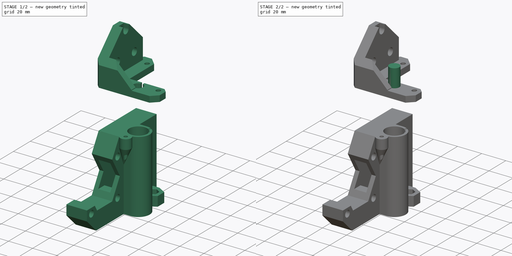
[diagram: build sequence overview — one tinted view per stage of 2, left to right]
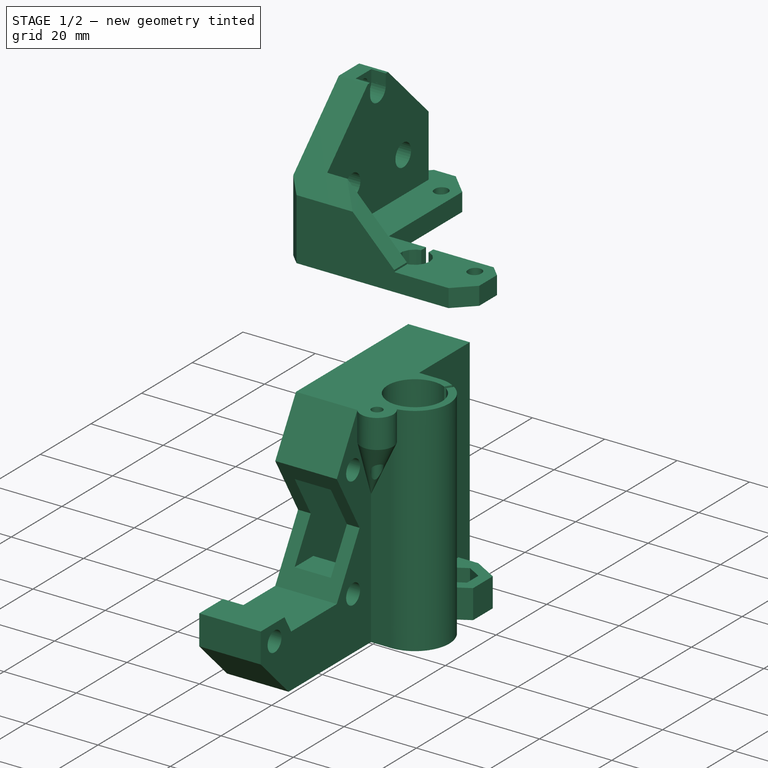
[diagram: stage 1 of 2 — iso view after this stage's code; geometry added in this stage tinted green]
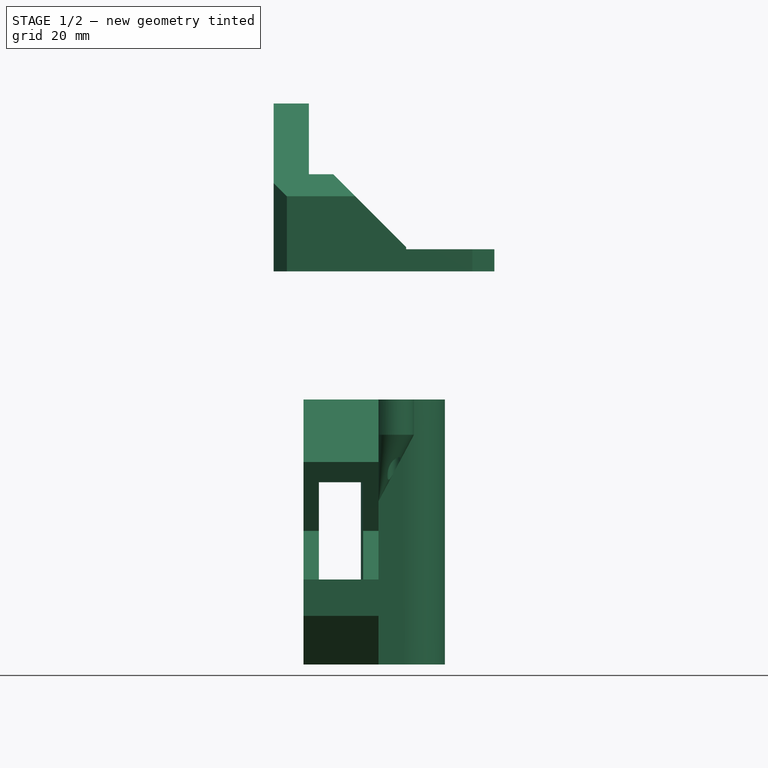
[diagram: stage 1 of 2 — front view after this stage's code; geometry added in this stage tinted green]
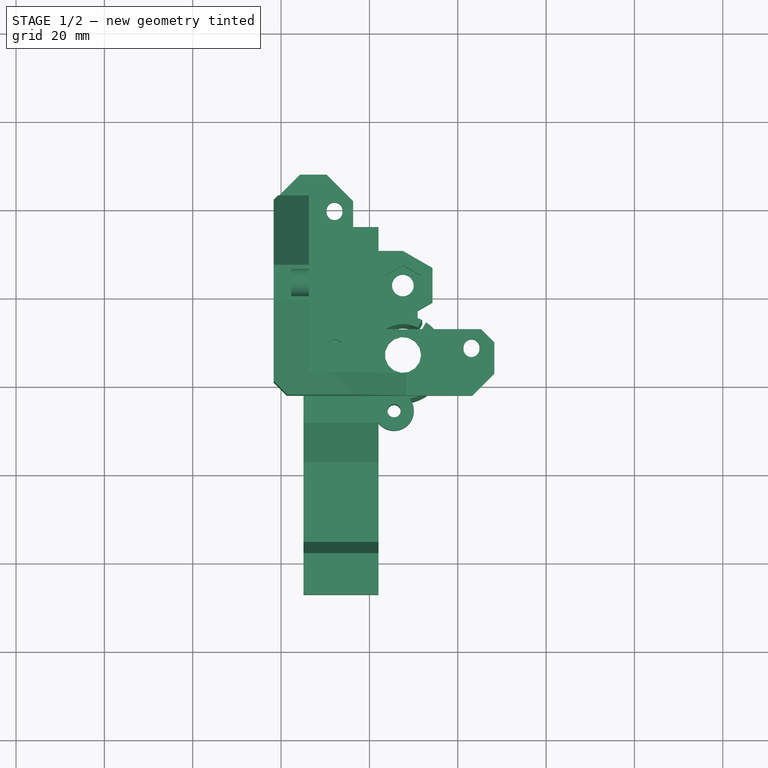
[diagram: stage 1 of 2 — top view after this stage's code; geometry added in this stage tinted green]
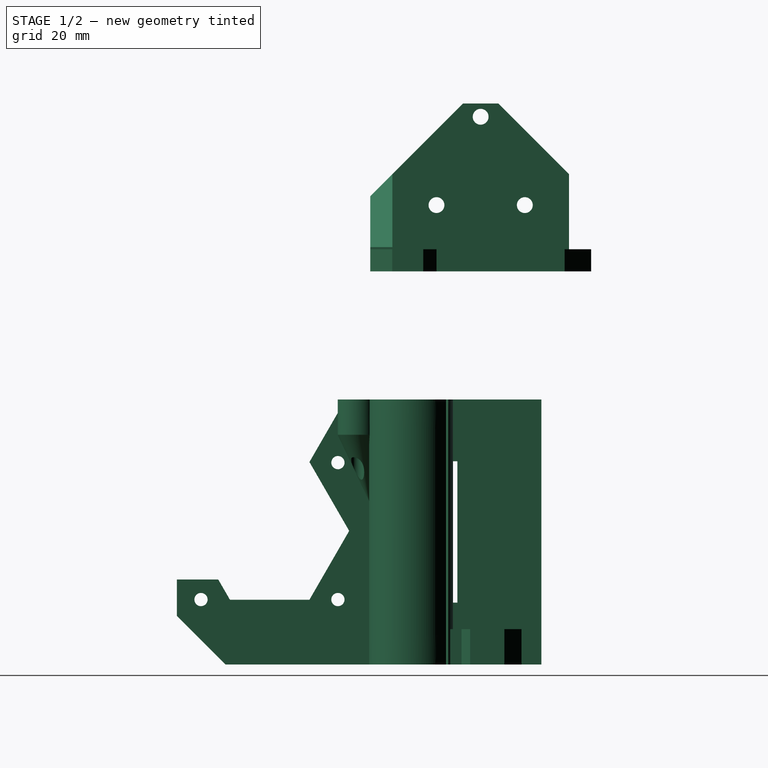
[diagram: stage 1 of 2 — right view after this stage's code; geometry added in this stage tinted green]
FCSTD DOCUMENT  (FreeCAD 0.15R4268 (Git))
Label: alineamiento-z-meta
License: CC-BY 3.0
LicenseURL: http://creativecommons.org/licenses/by/3.0/
objects: Part::Feature×5, Part::Cylinder×2, Sketcher::SketchObject×1, PartDesign::Pocket×1, App::DocumentObjectGroup×1, Part::Mirroring×1
note: 11 computed .brp shape members not serialized (recipe doc carries the construction recipe); baked Part::Feature solids carry a one-line shape summary decoded from their .brp

FEATURE [Part::Feature] difference
  Placement = pos=(-21.7,-18.5,0) rot=(0,0,1;0rad)
  shape: bbox 50 x 50 x 38 mm, 303 faces (baked)
FEATURE [Sketcher::SketchObject] Sketch
  ExternalGeometry = -> [difference]
  Placement = pos=(-21.7,-18.5,0) rot=(1,0,0;3.14159rad)
  Support = -> difference [Face210]
  sketch-geometry (7):
    g0: Circle [constr] CenterX=44.8 CenterY=-5.5 CenterZ=0 NormalX=0 NormalY=0 NormalZ=1 Radius=1.8
    g1: Circle CenterX=44.8 CenterY=-5.9 CenterZ=0 NormalX=0 NormalY=0 NormalZ=1 Radius=1.8
    g2: LineSegment [constr] StartX=44.8 StartY=-5.5 StartZ=0 EndX=44.8 EndY=-5.9 EndZ=0
    g3: LineSegment [constr] StartX=44.8 StartY=-5.9 StartZ=0 EndX=13.8 EndY=-5.9 EndZ=0
    g4: Circle CenterX=13.8 CenterY=-5.9 CenterZ=0 NormalX=0 NormalY=0 NormalZ=1 Radius=1.8
    g5: LineSegment [constr] StartX=13.8 StartY=-5.9 StartZ=0 EndX=13.8 EndY=-36.9 EndZ=0
    g6: Circle CenterX=13.8 CenterY=-36.9 CenterZ=0 NormalX=0 NormalY=0 NormalZ=1 Radius=1.8
  constraints (18):
    c: PointOnObject(g-4,g0)
    c: PointOnObject(g-3,g0)
    c: PointOnObject(g-3,g0)
    c: Coincident(g2,g0)
    c: Coincident(g2,g1)
    c: Vertical(g2)
    c: Equal(g0,g1)
    c: Distance(g2) = 0.4
    c: Coincident(g3,g1)
    c: Horizontal(g3)
    c: Coincident(g4,g3)
    c: Distance(g3) = 31
    c: Coincident(g5,g3)
    c: Vertical(g5)
    c: Coincident(g6,g5)
    c: Equal(g6,g4)
    c: Equal(g4,g1)
    c: Equal(g5,g3)
FEATURE [PartDesign::Pocket] Pocket
  Length = 7
  Placement = pos=(-21.7,-18.5,0) rot=(0,0,1;0rad)
  Sketch = -> Sketch
  Type = 0
FEATURE [App::DocumentObjectGroup] Group
  Group = -> [Pocket,difference]
FEATURE [Part::Mirroring] Part__Mirroring  label="xmotor (Mirror #1)"
  Base = (0,0,0)
  Normal = (0,1,0)
  Placement = pos=(-113.4,-399.2,-89) rot=(0,0,1;0rad)
  Source = -> Solid
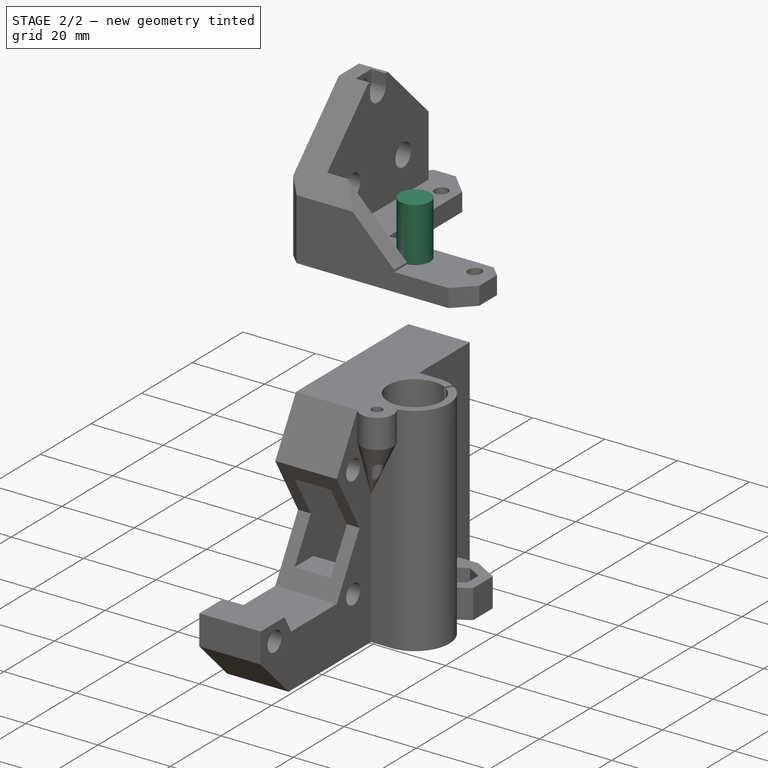
[diagram: stage 2 of 2 — iso view after this stage's code; geometry added in this stage tinted green]
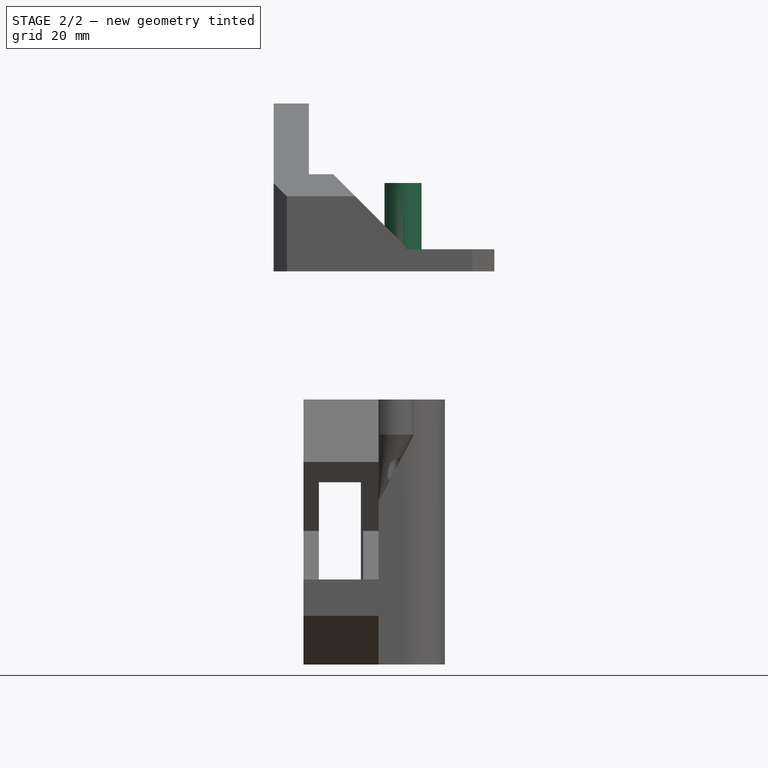
[diagram: stage 2 of 2 — front view after this stage's code; geometry added in this stage tinted green]
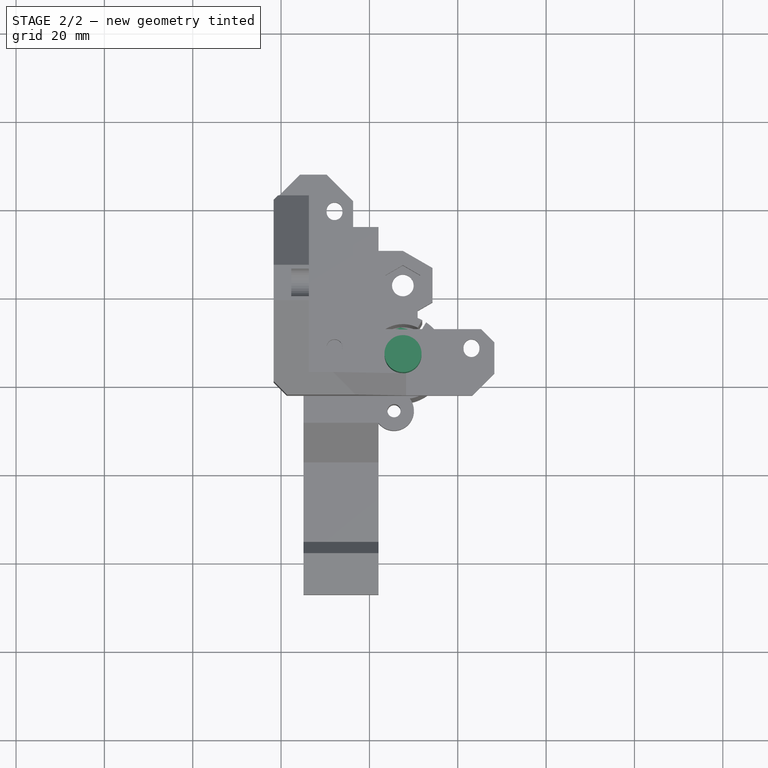
[diagram: stage 2 of 2 — top view after this stage's code; geometry added in this stage tinted green]
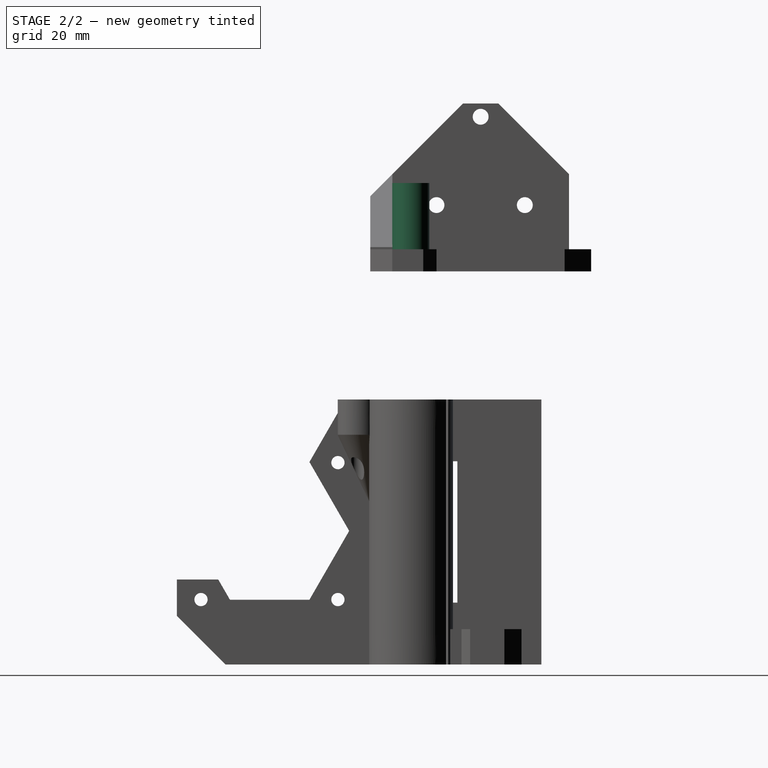
[diagram: stage 2 of 2 — right view after this stage's code; geometry added in this stage tinted green]
FEATURE [Part::Feature] Solid  label="xmotor"
  shape: bbox 32 x 82.5 x 60 mm, 5090 faces (baked)
FEATURE [Part::Feature] Solid001  label="zmotor"
  Placement = pos=(0,0,0) rot=(0,0,-1;1.5708rad)
  shape: bbox 50 x 50 x 38 mm, 1500 faces (baked)
FEATURE [Part::Feature] Solid002  label="xIdler"
  Placement = pos=(-600.1,366.4,-89) rot=(0,0,1;0rad)
  shape: bbox 32 x 39 x 60 mm, 2892 faces (baked)
FEATURE [Part::Feature] Pad  label="NEMA018"
  Placement = pos=(-13.58,24.15,0) rot=(1,0,0;1.5708rad)
  shape: bbox 42.3 x 42.3 x 65 mm, 22 faces (baked)
FEATURE [Part::Cylinder] Cylinder001
  Angle = 360
  Height = 20
  Placement = pos=(7.6,-14.3,-89) rot=(0,0,1;0rad)
  Radius = 7.5
FEATURE [Part::Cylinder] Cylinder
  Angle = 360
  Height = 20
  Placement = pos=(7.6,-14.3,0) rot=(0,0,1;0rad)
  Radius = 4.2
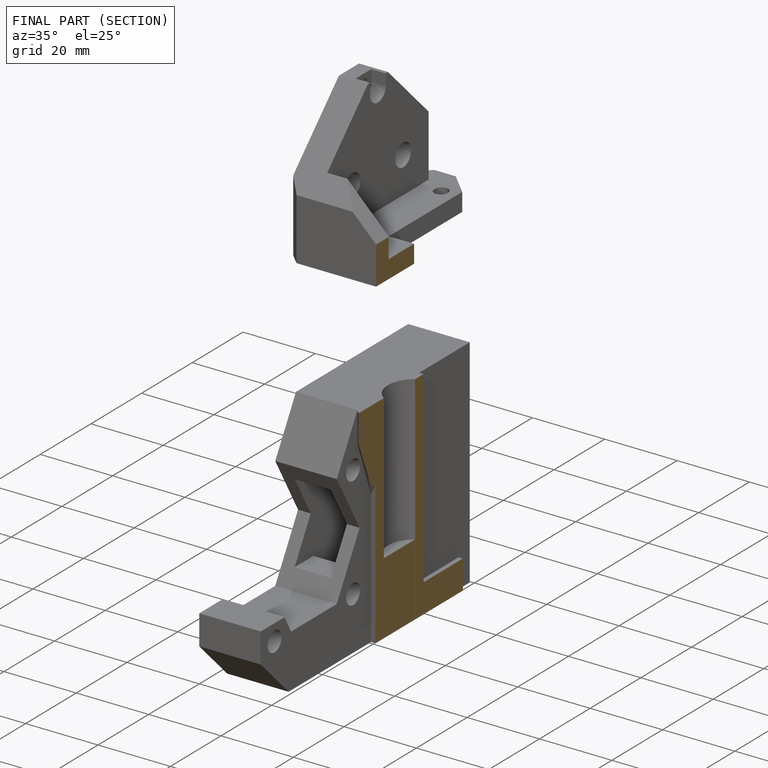
[diagram: finished part — half-section view (interior)]
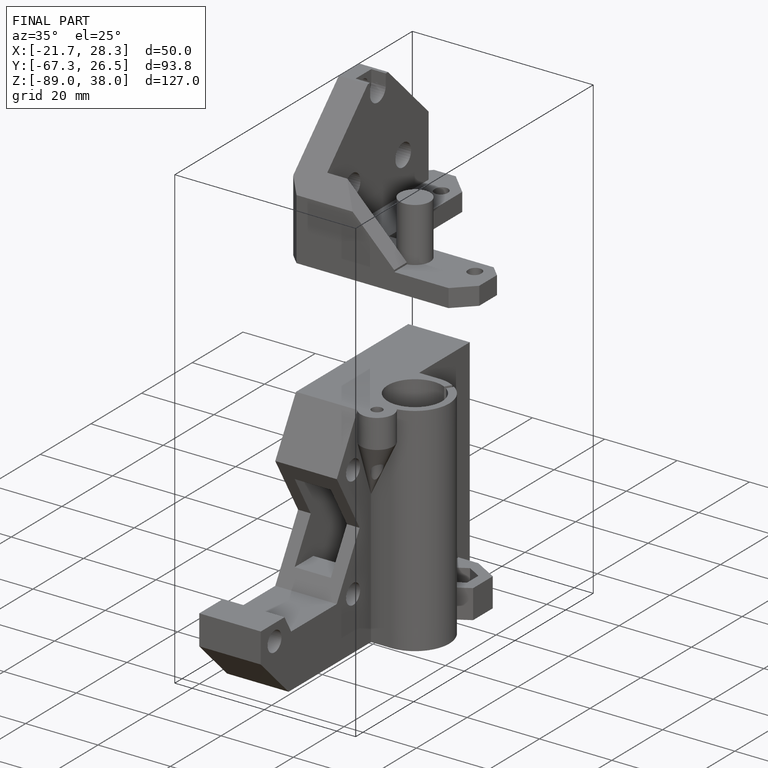
[diagram: finished part — iso view with bounding-box wireframe]
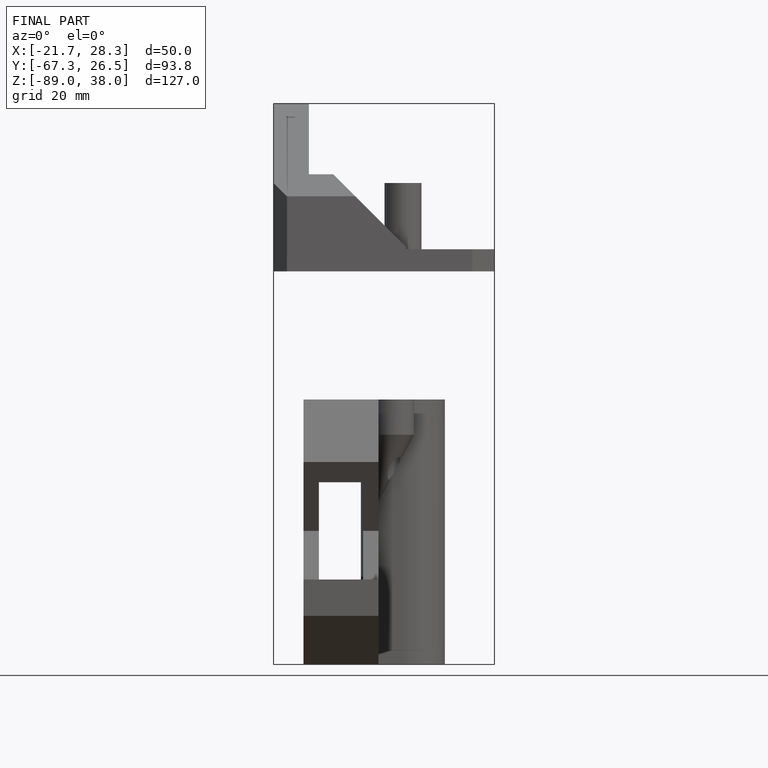
[diagram: finished part — front view with bounding-box wireframe]
